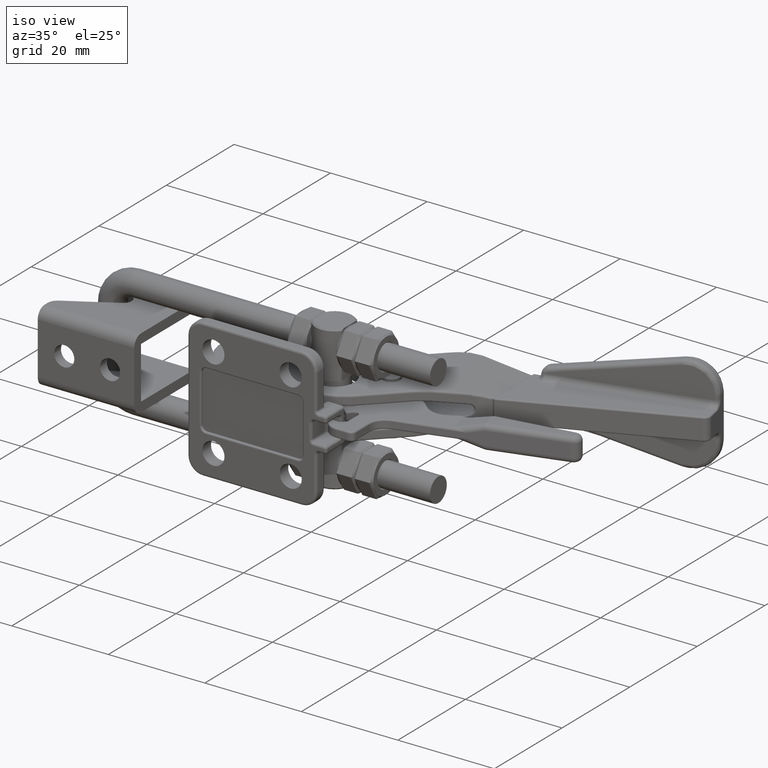
[diagram: clean part render]
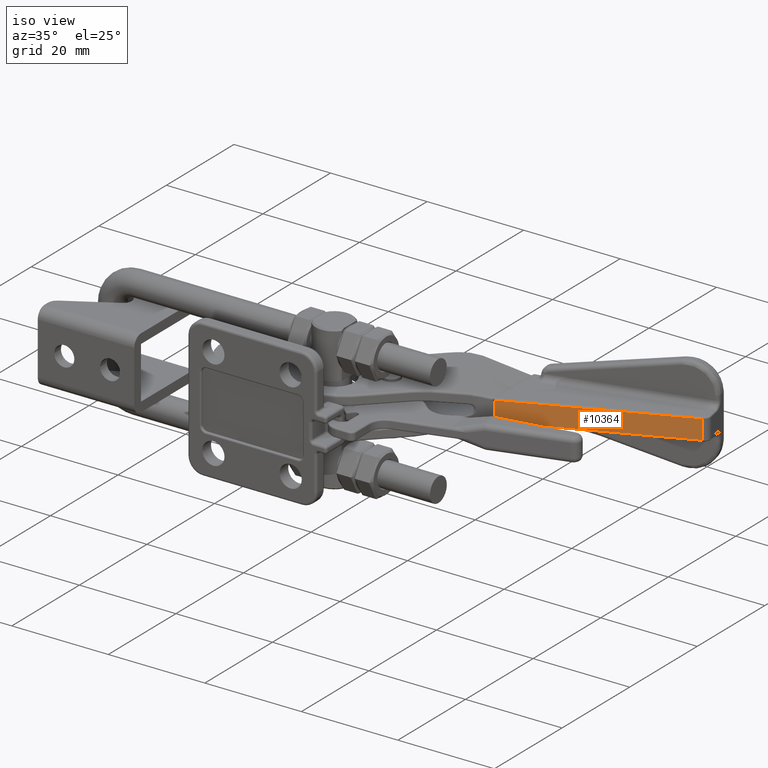
[diagram: same view with one face highlighted and labeled with its STEP entity id]
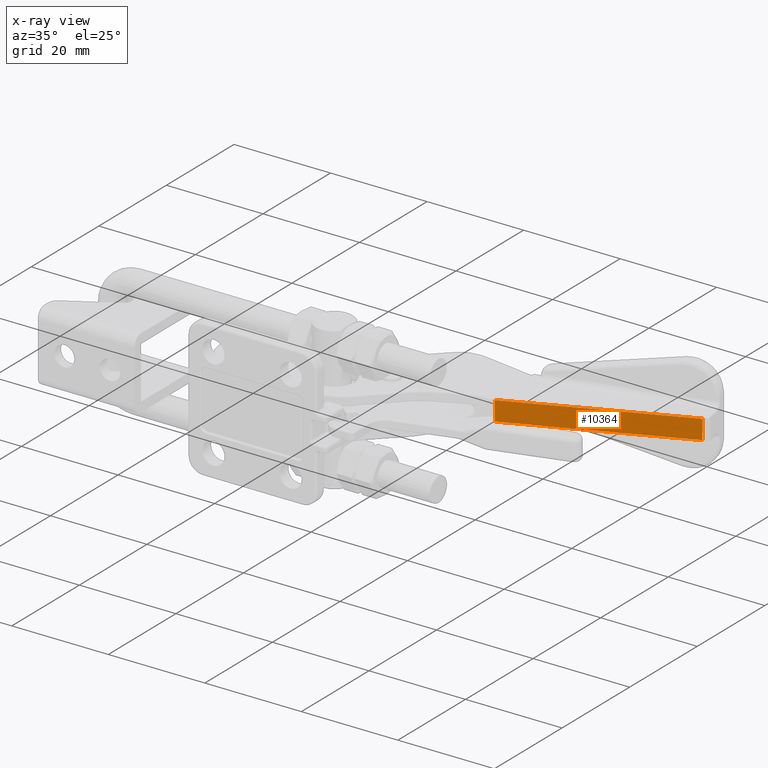
[diagram: x-ray of the same camera — body ghosted, the highlighted face saturated]
A machine part, iso view. The second image highlights one B-rep face of the part: STEP entity #10364.
The next image is the same camera in x-ray: the body ghosted, the highlighted face saturated — about 0% of this face is hidden behind the body in this view.
In plain terms, the highlighted planar face has unit normal (0.3907, -0.9205, -0).
Its self-contained STEP definition (entity closure, byte-faithful):
#501=B_SPLINE_CURVE_WITH_KNOTS('',3,(#23745,#23746,#23747,#23748),
 .UNSPECIFIED.,.F.,.F.,(4,4),(0.,1.),.UNSPECIFIED.);
#504=B_SPLINE_CURVE_WITH_KNOTS('',3,(#23783,#23784,#23785,#23786,#23787,
#23788),.UNSPECIFIED.,.F.,.F.,(4,1,1,4),(0.,0.3333333333333,0.6666666666667,
1.),.UNSPECIFIED.);
#729=PLANE('',#11500);
#1251=LINE('',#23754,#1810);
#1275=LINE('',#25179,#1834);
#1276=LINE('',#25183,#1835);
#1277=LINE('',#25184,#1836);
#1810=VECTOR('',#13949,3.725040709117);
#1834=VECTOR('',#14071,36.0040414670297);
#1835=VECTOR('',#14076,36.0040414670297);
#1836=VECTOR('',#14077,4.0053);
#2549=FACE_OUTER_BOUND('',#3271,.T.);
#3271=EDGE_LOOP('',(#8797,#8798,#8799,#8800,#8801,#8802));
#4759=VERTEX_POINT('',#23724);
#4760=VERTEX_POINT('',#23743);
#4762=VERTEX_POINT('',#23751);
#4764=VERTEX_POINT('',#23772);
#4822=VERTEX_POINT('',#25178);
#4823=VERTEX_POINT('',#25182);
#6103=EDGE_CURVE('',#4760,#4759,#501,.T.);
#6106=EDGE_CURVE('',#4760,#4762,#1251,.T.);
#6110=EDGE_CURVE('',#4764,#4762,#504,.T.);
#6197=EDGE_CURVE('',#4822,#4759,#1275,.T.);
#6199=EDGE_CURVE('',#4764,#4823,#1276,.T.);
#6200=EDGE_CURVE('',#4823,#4822,#1277,.T.);
#8797=ORIENTED_EDGE('',*,*,#6199,.F.);
#8798=ORIENTED_EDGE('',*,*,#6110,.T.);
#8799=ORIENTED_EDGE('',*,*,#6106,.F.);
#8800=ORIENTED_EDGE('',*,*,#6103,.T.);
#8801=ORIENTED_EDGE('',*,*,#6197,.F.);
#8802=ORIENTED_EDGE('',*,*,#6200,.F.);
#10364=ADVANCED_FACE('',(#2549),#729,.T.);
#11500=AXIS2_PLACEMENT_3D('',#25181,#14074,#14075);
#13949=DIRECTION('',(0.,0.,1.));
#14071=DIRECTION('',(-0.93339222228048,-0.358857854012292,0.));
#14074=DIRECTION('center_axis',(0.358857854012292,-0.93339222228048,0.));
#14075=DIRECTION('ref_axis',(-0.933392222280474,-0.358857854012307,0.));
#14076=DIRECTION('',(0.93339222228048,0.358857854012292,0.));
#14077=DIRECTION('',(0.,0.,-1.));
#23724=CARTESIAN_POINT('',(1291.723373571,664.9159530658,-2.00265));
#23743=CARTESIAN_POINT('',(1291.712005533,664.9115824381,-1.862520354558));
#23745=CARTESIAN_POINT('Ctrl Pts',(1291.71200553295,664.91158243824,-1.862520354558));
#23746=CARTESIAN_POINT('Ctrl Pts',(1291.71200547693,664.911582416672,-1.9096731466));
#23747=CARTESIAN_POINT('Ctrl Pts',(1291.71713962799,664.913556324728,-1.95614484574501));
#23748=CARTESIAN_POINT('Ctrl Pts',(1291.72337357103,664.91595306572,-2.00265));
#23751=CARTESIAN_POINT('',(1291.712005533,664.9115824381,1.862520354559));
#23754=CARTESIAN_POINT('',(1291.712005533,664.9115824381,-1.862520354558));
#23772=CARTESIAN_POINT('',(1291.723373571,664.9159530658,2.00265));
#23783=CARTESIAN_POINT('Ctrl Pts',(1291.723373571,664.9159530658,2.00265));
#23784=CARTESIAN_POINT('Ctrl Pts',(1291.721228824,664.9151284826,1.986653461261));
#23785=CARTESIAN_POINT('Ctrl Pts',(1291.717104987,664.9135430065,1.955009499611));
#23786=CARTESIAN_POINT('Ctrl Pts',(1291.712999898,664.911964738,1.908222419574));
#23787=CARTESIAN_POINT('Ctrl Pts',(1291.712005525,664.911582435,1.877659507726));
#23788=CARTESIAN_POINT('Ctrl Pts',(1291.712005533,664.9115824381,1.862520354559));
#25178=CARTESIAN_POINT('',(1325.329265847,677.8362861224,-2.00265));
#25179=CARTESIAN_POINT('',(1325.329265847,677.8362861224,-2.00265));
#25181=CARTESIAN_POINT('Origin',(1325.329265847,677.8362861224,0.));
#25182=CARTESIAN_POINT('',(1325.329265847,677.8362861224,2.00265));
#25183=CARTESIAN_POINT('',(1291.723373571,664.9159530658,2.00265));
#25184=CARTESIAN_POINT('',(1325.329265847,677.8362861224,2.00265));